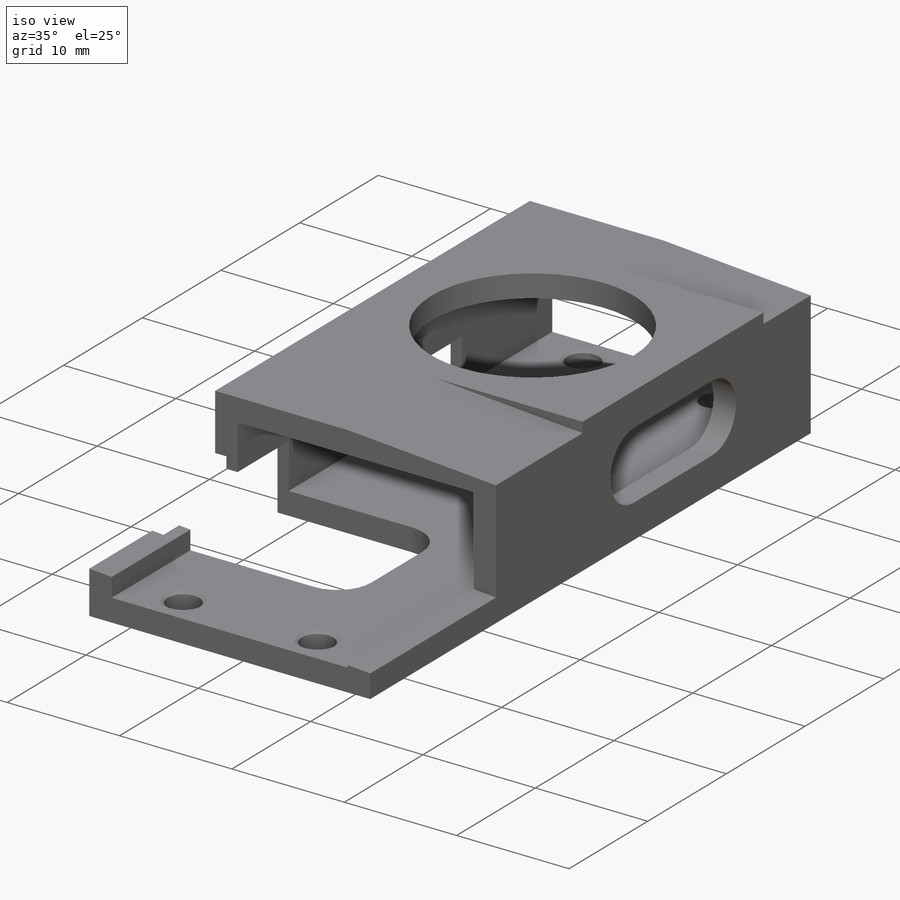
[diagram: iso view]
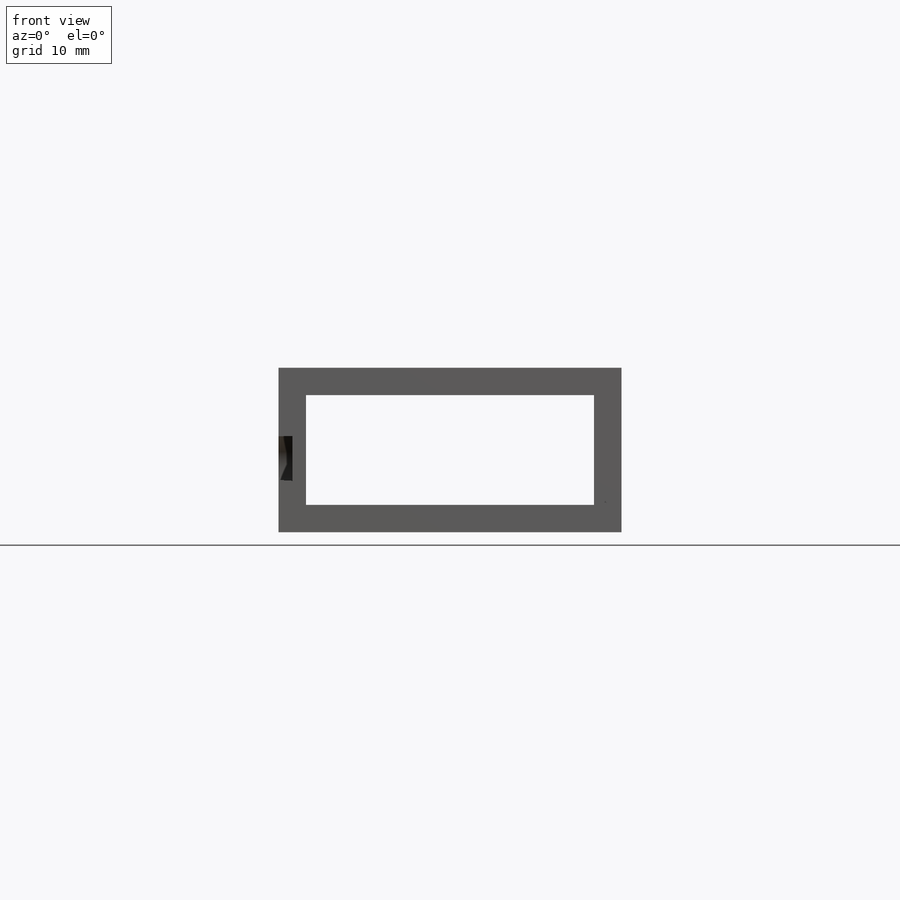
[diagram: front view]
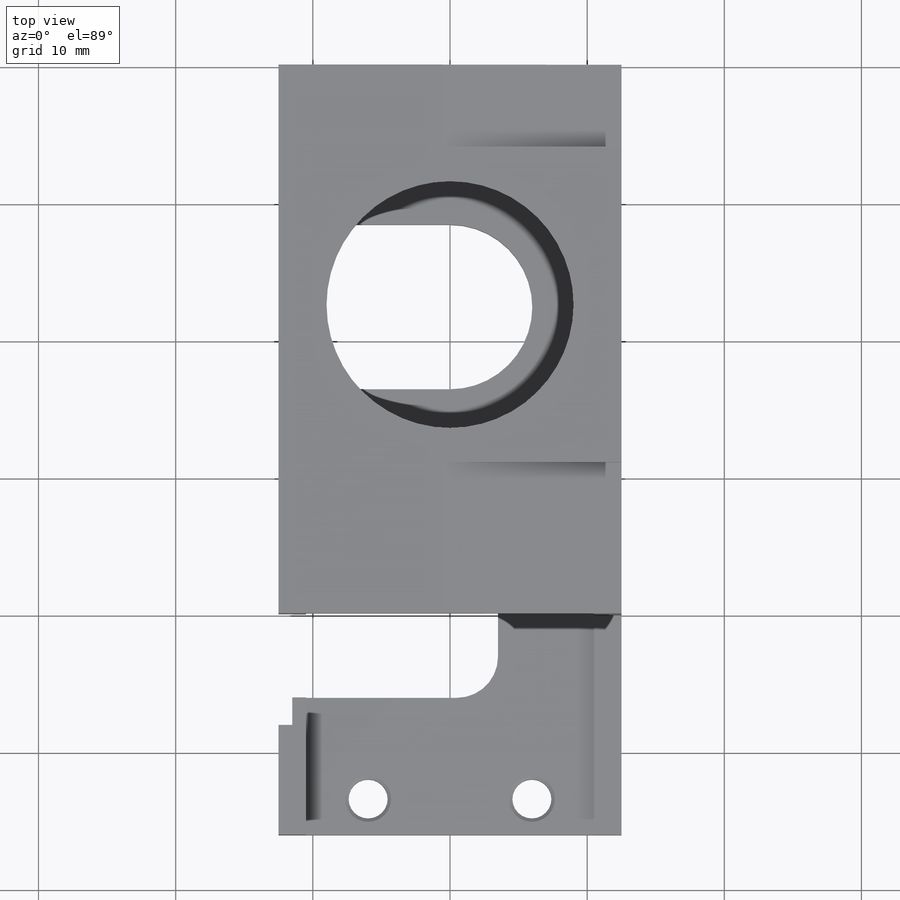
[diagram: top view]
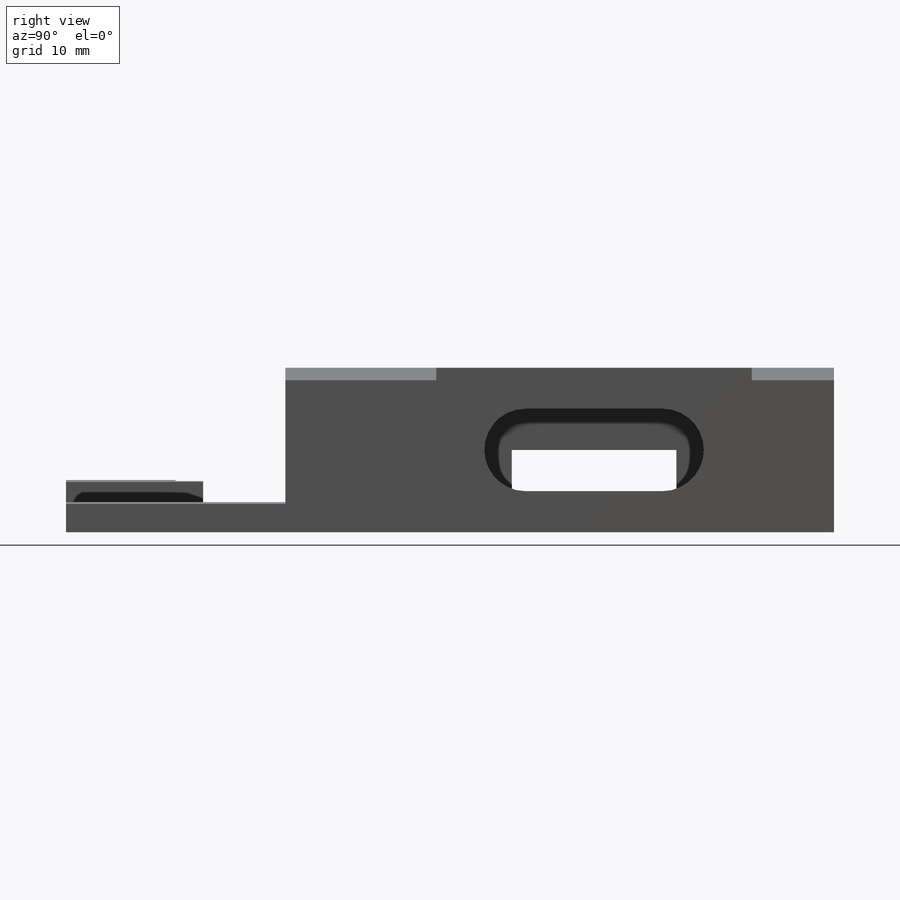
[diagram: right view]
SOLIDWORKS PART (.sldprt)
format: sldprt  version: not decoded by parser v0  size: 450,048 bytes
history: native  units: mm
features: sketch x14, cut_extrude x9, plane x3, hole x2, material x1, extrude x1 (+13 scaffold rows collapsed)
feature tree (43):
  scaffold x13  (default folders/planes/origin — collapsed)
  material  "6063-T1"
  plane  "Спереди"
  plane  "Сверху"
  plane  "Справа"
  sketch  "Эскиз1"  dims[D1=25.0mm D2=12.0mm D3=2.0mm]
  extrude  "Бобышка-Вытянуть1"  Depth=56mm
  sketch  "Эскиз2"  dims[D1=18.0mm D2=17.5mm]
  cut_extrude  "Вырез-Вытянуть1"  [1 undecoded]
  hole  "Отверстие обработанное метчиком #4-401"  [1 undecoded]
  sketch  "Эскиз4"  dims[D1=50.8mm D2=11.94mm D3=14.93mm D4=5.97mm]
  sketch  "Эскиз3"  dims[hole-wizard template sketch: 47 standard entries collapsed; hole parameters kept: c15.Глубина проходного сверла=2.0mm c15.Диаметр передней зенковки=3.3528mm c15.D4=~3.666174mm c15.Угол передней зенковки=110.0deg c15.Диаметр задней зенковки=3.3528mm c15.D6=~9.919017mm c15.Угол задней зенковки=110.0deg]
  sketch  "Эскиз5"  dims[D1=6.0mm D2=3.0mm D3=12.5mm D4=16.0mm D5=10.0mm]
  cut_extrude  "Вырез-Вытянуть2"  Depth=6mm
  sketch  "Эскиз7"  dims[c1.D2=8.0mm c1.D3=8.0mm c1.D1=1.0mm c2.D2=~10.050693mm c2.D3=3.0mm]
  cut_extrude  "Вырез-Вытянуть3"  Depth=2.5mm
  sketch  "Эскиз8"  dims[D1=3.0mm D2=7.0mm D3=38.5mm D4=2.0mm]
  cut_extrude  "Вырез-Вытянуть4"  Depth=1mm
  sketch  "Эскиз9"  dims[c1.D1=22.0mm c1.D2=1.0mm c1.D3=1.5mm c1.D4=~1.167654mm c2.D4=90.0deg c2.D5=~1.316606mm c3.D5=70.0deg c3.D6=1.0mm]
  cut_extrude  "Вырез-Вытянуть7"  Depth=2.2mm
  hole  "Отверстие обработанное метчиком #4-402"  [1 undecoded]
  sketch  "Эскиз12"  dims[c1.D1=18.0mm c1.D2=18.0mm c1.D3=18.0mm c1.D4=18.0mm c2.D1=13.0mm c2.D2=8.0mm c2.D3=14.0mm c2.D4=8.0mm]
  sketch  "Эскиз11"  dims[hole-wizard template sketch: 46 standard entries collapsed; hole parameters kept: c15.Диаметр резьбы=2.2606mm c15.Глубина проходного сверла=2.0mm c15.Диаметр передней зенковки=3.3528mm c15.D4=~3.666174mm c15.Угол передней зенковки=110.0deg c15.Диаметр задней зенковки=3.3528mm c15.D6=~9.919017mm c15.Угол задней зенковки=110.0deg]
  sketch  "Эскиз13"  dims[D1=6.0mm D2=16.0mm D3=3.0mm D4=17.5mm]
  cut_extrude  "Вырез-Вытянуть8"  [1 undecoded]
  sketch  "Эскиз14"  dims[c1.D1=~21.909374mm c2.D1=4.0deg c2.D2=12.8mm c3.D1=12.8mm c3.D2=25.0mm c4.D2=4.0deg]
  cut_extrude  "Вырез-Вытянуть9"  Depth=6mm
  cut_extrude  "Вырез-Вытянуть10"  [1 undecoded]
  sketch  "Эскиз14<3>"  dims[D1=27.0mm]
  sketch  "Эскиз15"  dims[D1=16.0mm]
  cut_extrude  "Вырез-Вытянуть11"  Depth=9mm
decode coverage: 21 of 26 modeling features carry decoded parameters
note: ~ marks probable driven/reference dimensions
note: 5 parameter values undecoded
summary: no parameter record found for 5 features
note: suppression state not decoded; provenance and decode notes live in map.json
